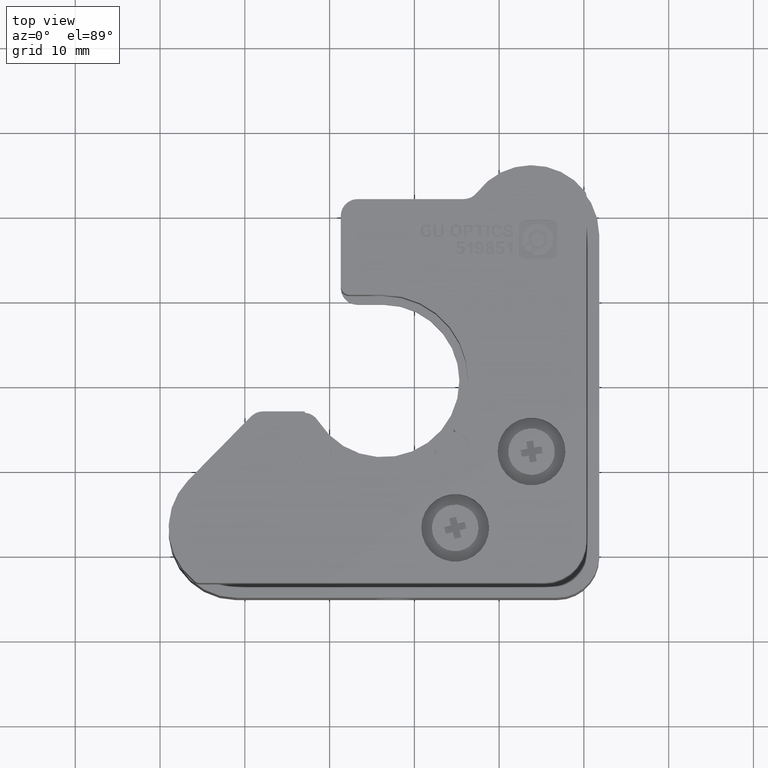
[diagram: clean part render]
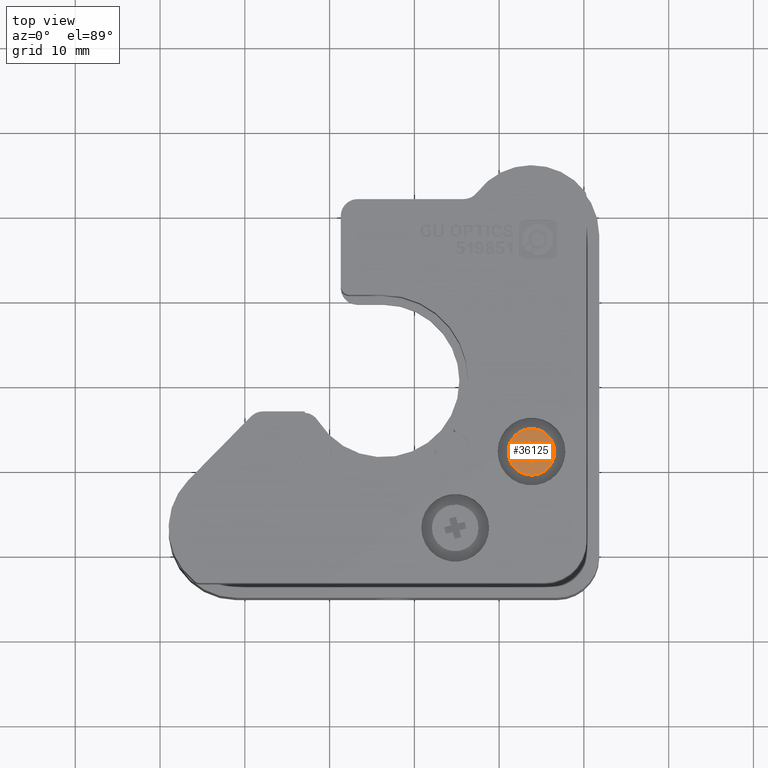
[diagram: same view with one face highlighted and labeled with its STEP entity id]
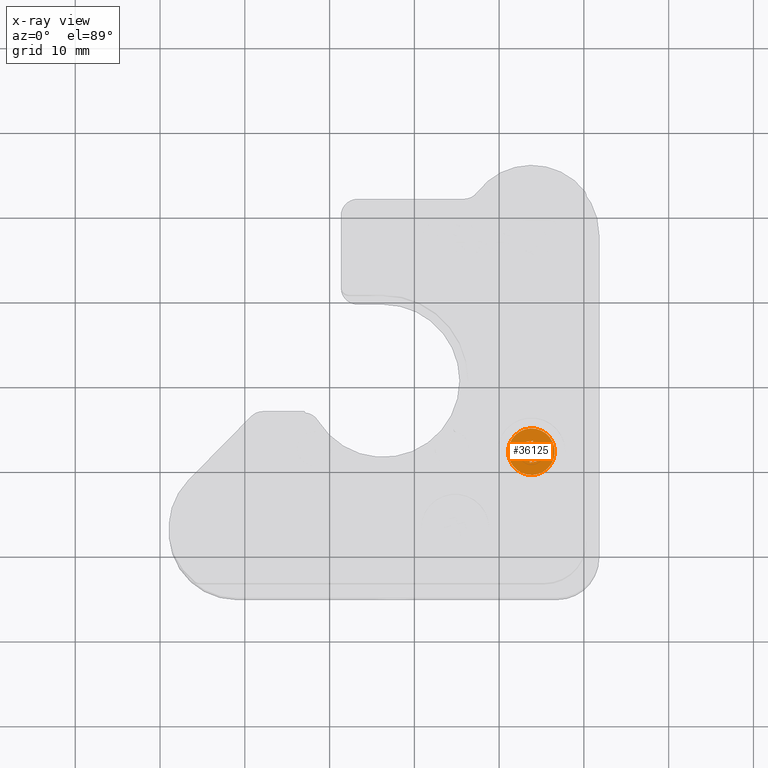
[diagram: x-ray of the same camera — body ghosted, the highlighted face saturated]
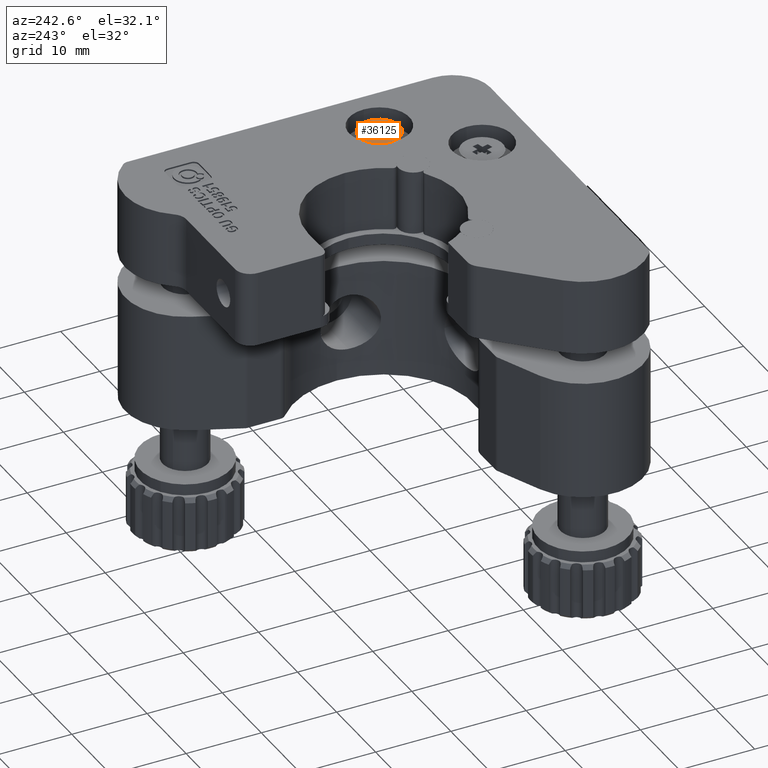
[diagram: same view with one face highlighted and labeled with its STEP entity id]
A machine part, top view. The second image highlights one B-rep face of the part: STEP entity #36125.
The next image is the same camera in x-ray: the body ghosted, the highlighted face saturated — about 0% of this face is hidden behind the body in this view.
A second angle (auxiliary view) of the same face is appended — the face is thin or edge-on in the first view.
In plain terms, the highlighted planar face has unit normal (-0, -0, 1).
Its self-contained STEP definition (entity closure, byte-faithful):
#655 = VECTOR ( 'NONE', #27735, 1000.000000000000100 ) ;
#819 = EDGE_CURVE ( 'NONE', #17085, #32937, #13237, .T. ) ;
#1471 = EDGE_CURVE ( 'NONE', #30628, #23228, #27548, .T. ) ;
#1783 = DIRECTION ( 'NONE',  ( 1.035379938102578000E-030, 1.741040669726061200E-031, -1.000000000000000000 ) ) ;
#1917 = VERTEX_POINT ( 'NONE', #15541 ) ;
#1982 = DIRECTION ( 'NONE',  ( -0.1712631048599005100, 0.9852253290053736300, -1.199180055618605500E-032 ) ) ;
#2145 = VECTOR ( 'NONE', #20104, 1000.000000000000100 ) ;
#2186 = VERTEX_POINT ( 'NONE', #20670 ) ;
#2533 = CARTESIAN_POINT ( 'NONE',  ( 14.13772712187916600, -7.931565772976894000, 55.55464027104148500 ) ) ;
#3277 = CARTESIAN_POINT ( 'NONE',  ( 14.42031124489800000, -9.557187565835761200, 55.55464027104148500 ) ) ;
#3676 = CARTESIAN_POINT ( 'NONE',  ( 13.34954685867486600, -8.068576256864815800, 55.55464027104148500 ) ) ;
#3698 = VECTOR ( 'NONE', #22755, 1000.000000000000100 ) ;
#4162 = CARTESIAN_POINT ( 'NONE',  ( 13.81214223222097600, -8.394161146523003900, 55.55464027104148500 ) ) ;
#4306 = VERTEX_POINT ( 'NONE', #10170 ) ;
#5184 = ORIENTED_EDGE ( 'NONE', *, *, #31028, .F. ) ;
#5269 = ORIENTED_EDGE ( 'NONE', *, *, #32444, .F. ) ;
#5749 = CARTESIAN_POINT ( 'NONE',  ( 13.63213098169370200, -9.694198049723683000, 55.55464027104148500 ) ) ;
#5767 = VECTOR ( 'NONE', #32298, 1000.000000000000100 ) ;
#6727 = LINE ( 'NONE', #11625, #21626 ) ;
#7010 = DIRECTION ( 'NONE',  ( -0.9852253290053736300, -0.1712631048599004000, 0.0000000000000000000 ) ) ;
#7458 = ORIENTED_EDGE ( 'NONE', *, *, #15552, .F. ) ;
#8368 = EDGE_CURVE ( 'NONE', #33849, #20290, #34626, .T. ) ;
#8573 = DIRECTION ( 'NONE',  ( 0.1712631048599005900, -0.9852253290053735200, 1.989428358692425600E-032 ) ) ;
#8580 = EDGE_CURVE ( 'NONE', #4306, #9195, #19337, .T. ) ;
#9195 = VERTEX_POINT ( 'NONE', #35013 ) ;
#9459 = DIRECTION ( 'NONE',  ( 0.9852253290053736300, 0.1712631048599004600, 6.195440985631560100E-017 ) ) ;
#9603 = LINE ( 'NONE', #33993, #2145 ) ;
#9725 = DIRECTION ( 'NONE',  ( -0.1712631048599005100, 0.9852253290053736300, -1.199180055618605700E-032 ) ) ;
#9857 = ORIENTED_EDGE ( 'NONE', *, *, #819, .F. ) ;
#10170 = CARTESIAN_POINT ( 'NONE',  ( 16.52151188698575300, -7.923187608158278800, 55.55464027104148500 ) ) ;
#10422 = CARTESIAN_POINT ( 'NONE',  ( 12.64911581290821900, -9.002330159200029800, 55.55464027104148500 ) ) ;
#10740 = CARTESIAN_POINT ( 'NONE',  ( 13.63213098169370200, -9.694198049723683000, 55.55464027104148500 ) ) ;
#10756 = CARTESIAN_POINT ( 'NONE',  ( 13.81214223222097600, -8.394161146523003900, 55.55464027104148500 ) ) ;
#11389 = CARTESIAN_POINT ( 'NONE',  ( 14.27473760576708600, -8.719746036181193800, 55.55464027104148500 ) ) ;
#11460 = LINE ( 'NONE', #35473, #25444 ) ;
#11625 = CARTESIAN_POINT ( 'NONE',  ( 13.34954685867486600, -8.068576256864815800, 55.55464027104148500 ) ) ;
#11969 = EDGE_CURVE ( 'NONE', #29687, #27092, #23051, .T. ) ;
#12448 = CARTESIAN_POINT ( 'NONE',  ( 15.11217913542165500, -8.574172397050277900, 55.55464027104148500 ) ) ;
#12735 = LINE ( 'NONE', #26468, #34103 ) ;
#13237 = LINE ( 'NONE', #28569, #5767 ) ;
#13267 = VECTOR ( 'NONE', #28610, 1000.000000000000100 ) ;
#13587 = DIRECTION ( 'NONE',  ( 0.9852253290053736300, 0.1712631048599004600, 1.060031841390734400E-030 ) ) ;
#14371 = ORIENTED_EDGE ( 'NONE', *, *, #8368, .F. ) ;
#14710 = CARTESIAN_POINT ( 'NONE',  ( 13.63213098169370200, -9.694198049723683000, 55.55464027104148500 ) ) ;
#15541 = CARTESIAN_POINT ( 'NONE',  ( 14.27473760576708600, -8.719746036181193800, 55.55464027104148500 ) ) ;
#15552 = EDGE_CURVE ( 'NONE', #15780, #2186, #18038, .T. ) ;
#15780 = VERTEX_POINT ( 'NONE', #12448 ) ;
#17022 = ORIENTED_EDGE ( 'NONE', *, *, #1471, .F. ) ;
#17085 = VERTEX_POINT ( 'NONE', #23640 ) ;
#17165 = VECTOR ( 'NONE', #22140, 1000.000000000000100 ) ;
#17452 = EDGE_CURVE ( 'NONE', #32937, #30628, #6727, .T. ) ;
#17883 = LINE ( 'NONE', #5749, #25345 ) ;
#18038 = LINE ( 'NONE', #22263, #17165 ) ;
#18344 = EDGE_CURVE ( 'NONE', #22662, #17085, #12735, .T. ) ;
#18570 = CARTESIAN_POINT ( 'NONE',  ( 13.81214223222097600, -8.394161146523003900, 55.55464027104148500 ) ) ;
#19135 = EDGE_LOOP ( 'NONE', ( #29828, #19732 ) ) ;
#19337 = CIRCLE ( 'NONE', #25868, 2.749999999999997300 ) ;
#19370 = FACE_OUTER_BOUND ( 'NONE', #19135, .T. ) ;
#19732 = ORIENTED_EDGE ( 'NONE', *, *, #26993, .F. ) ;
#20104 = DIRECTION ( 'NONE',  ( 0.1712631048599004600, -0.9852253290053736300, 8.040559040816953600E-033 ) ) ;
#20253 = EDGE_CURVE ( 'NONE', #1917, #15780, #26023, .T. ) ;
#20290 = VERTEX_POINT ( 'NONE', #3277 ) ;
#20670 = CARTESIAN_POINT ( 'NONE',  ( 14.97516865153373400, -7.785992133845979900, 55.55464027104148500 ) ) ;
#21424 = DIRECTION ( 'NONE',  ( -0.9852253290053736300, -0.1712631048599004000, 0.0000000000000000000 ) ) ;
#21626 = VECTOR ( 'NONE', #31148, 1000.000000000000100 ) ;
#22140 = DIRECTION ( 'NONE',  ( -0.1712631048599004600, 0.9852253290053736300, -8.040559040816953600E-033 ) ) ;
#22198 = VECTOR ( 'NONE', #9459, 1000.000000000000100 ) ;
#22263 = CARTESIAN_POINT ( 'NONE',  ( 14.97516865153373400, -7.785992133845979900, 55.55464027104148500 ) ) ;
#22662 = VERTEX_POINT ( 'NONE', #25235 ) ;
#22755 = DIRECTION ( 'NONE',  ( 0.9852253290053736300, 0.1712631048599004600, 6.195440985631560100E-017 ) ) ;
#23026 = LINE ( 'NONE', #2533, #655 ) ;
#23051 = LINE ( 'NONE', #31817, #22198 ) ;
#23202 = EDGE_LOOP ( 'NONE', ( #32242, #5184, #7458, #24797, #5269, #14371, #26414, #23882, #34582, #17022, #29647, #9857 ) ) ;
#23228 = VERTEX_POINT ( 'NONE', #25438 ) ;
#23640 = CARTESIAN_POINT ( 'NONE',  ( 13.99215348274825000, -7.094124243322327500, 55.55464027104148500 ) ) ;
#23743 = DIRECTION ( 'NONE',  ( 1.035379938102578000E-030, 1.741040669726061200E-031, -1.000000000000000000 ) ) ;
#23882 = ORIENTED_EDGE ( 'NONE', *, *, #11969, .F. ) ;
#24797 = ORIENTED_EDGE ( 'NONE', *, *, #20253, .F. ) ;
#25235 = CARTESIAN_POINT ( 'NONE',  ( 14.13772712187916600, -7.931565772976894000, 55.55464027104148500 ) ) ;
#25345 = VECTOR ( 'NONE', #8573, 1000.000000000000200 ) ;
#25438 = CARTESIAN_POINT ( 'NONE',  ( 12.51210532902029900, -8.214149895995731800, 55.55464027104148500 ) ) ;
#25444 = VECTOR ( 'NONE', #1982, 1000.000000000000100 ) ;
#25868 = AXIS2_PLACEMENT_3D ( 'NONE', #4162, #23743, #7010 ) ;
#26023 = LINE ( 'NONE', #11389, #3698 ) ;
#26414 = ORIENTED_EDGE ( 'NONE', *, *, #29930, .F. ) ;
#26429 = CARTESIAN_POINT ( 'NONE',  ( 13.20397321954395200, -7.231134727210247500, 55.55464027104148500 ) ) ;
#26468 = CARTESIAN_POINT ( 'NONE',  ( 14.13772712187916600, -7.931565772976894000, 55.55464027104148500 ) ) ;
#26993 = EDGE_CURVE ( 'NONE', #9195, #4306, #31092, .T. ) ;
#27092 = VERTEX_POINT ( 'NONE', #27361 ) ;
#27361 = CARTESIAN_POINT ( 'NONE',  ( 13.48655734256278600, -8.856756520069115600, 55.55464027104148500 ) ) ;
#27548 = LINE ( 'NONE', #33127, #34953 ) ;
#27735 = DIRECTION ( 'NONE',  ( -0.9852253290053736300, -0.1712631048599003200, -6.195440985631560100E-017 ) ) ;
#28484 = AXIS2_PLACEMENT_3D ( 'NONE', #18570, #1783, #21424 ) ;
#28569 = CARTESIAN_POINT ( 'NONE',  ( 13.20397321954395200, -7.231134727210247500, 55.55464027104148500 ) ) ;
#28610 = DIRECTION ( 'NONE',  ( 0.9852253290053736300, 0.1712631048599004600, 6.195440985631560100E-017 ) ) ;
#29350 = EDGE_CURVE ( 'NONE', #23228, #29687, #9603, .T. ) ;
#29647 = ORIENTED_EDGE ( 'NONE', *, *, #17452, .F. ) ;
#29687 = VERTEX_POINT ( 'NONE', #10422 ) ;
#29778 = DIRECTION ( 'NONE',  ( -0.9852253290053736300, -0.1712631048599004600, -6.195440985631560100E-017 ) ) ;
#29828 = ORIENTED_EDGE ( 'NONE', *, *, #8580, .F. ) ;
#29930 = EDGE_CURVE ( 'NONE', #27092, #33849, #17883, .T. ) ;
#30279 = DIRECTION ( 'NONE',  ( -1.045361943745395200E-030, -1.758392530552089500E-031, 1.000000000000000000 ) ) ;
#30628 = VERTEX_POINT ( 'NONE', #3676 ) ;
#31028 = EDGE_CURVE ( 'NONE', #2186, #22662, #23026, .T. ) ;
#31092 = CIRCLE ( 'NONE', #28484, 2.749999999999997300 ) ;
#31148 = DIRECTION ( 'NONE',  ( 0.1712631048599005100, -0.9852253290053736300, 1.199180055618605500E-032 ) ) ;
#31817 = CARTESIAN_POINT ( 'NONE',  ( 12.64911581290821900, -9.002330159200029800, 55.55464027104148500 ) ) ;
#32242 = ORIENTED_EDGE ( 'NONE', *, *, #18344, .F. ) ;
#32298 = DIRECTION ( 'NONE',  ( -0.9852253290053736300, -0.1712631048599004600, -6.195440985631560100E-017 ) ) ;
#32444 = EDGE_CURVE ( 'NONE', #20290, #1917, #11460, .T. ) ;
#32937 = VERTEX_POINT ( 'NONE', #26429 ) ;
#33127 = CARTESIAN_POINT ( 'NONE',  ( 12.51210532902029900, -8.214149895995731800, 55.55464027104148500 ) ) ;
#33327 = FACE_BOUND ( 'NONE', #23202, .T. ) ;
#33849 = VERTEX_POINT ( 'NONE', #10740 ) ;
#33993 = CARTESIAN_POINT ( 'NONE',  ( 12.51210532902029900, -8.214149895995731800, 55.55464027104148500 ) ) ;
#34103 = VECTOR ( 'NONE', #9725, 1000.000000000000100 ) ;
#34582 = ORIENTED_EDGE ( 'NONE', *, *, #29350, .F. ) ;
#34626 = LINE ( 'NONE', #14710, #13267 ) ;
#34953 = VECTOR ( 'NONE', #29778, 1000.000000000000100 ) ;
#35013 = CARTESIAN_POINT ( 'NONE',  ( 11.10277257745620200, -8.865134684887729900, 55.55464027104148500 ) ) ;
#35237 = AXIS2_PLACEMENT_3D ( 'NONE', #10756, #30279, #13587 ) ;
#35473 = CARTESIAN_POINT ( 'NONE',  ( 14.42031124489800000, -9.557187565835761200, 55.55464027104148500 ) ) ;
#35765 = PLANE ( 'NONE',  #35237 ) ;
#36125 = ADVANCED_FACE ( 'NONE', ( #33327, #19370 ), #35765, .T. ) ;